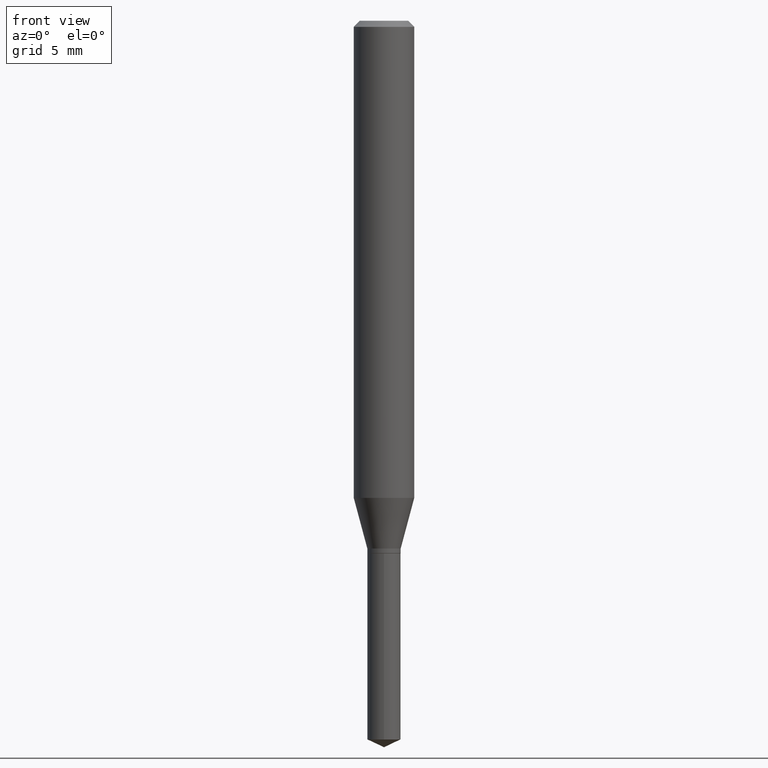
[diagram: clean part render]
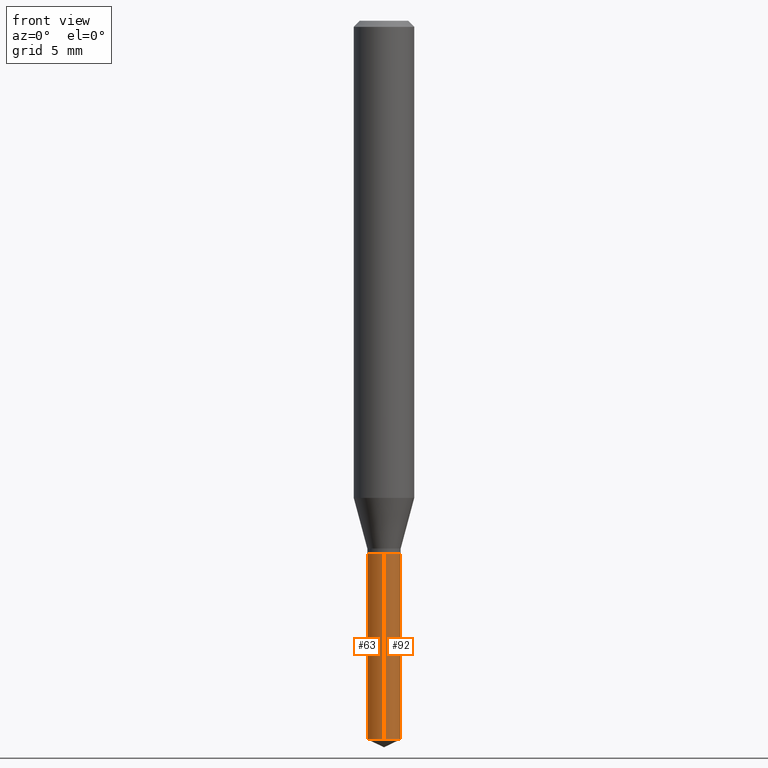
[diagram: same view with one multi-face feature highlighted, each face labeled with its STEP entity id]
A machine part, front view. The highlighted faces form ONE feature: a constant-radius fillet chain: 2 tangent blend faces with common blend radius 0.875 mm. The faces share edges in the B-rep.
Their STEP definitions:
[1] entity #92 (Cylinder):
#8 = CARTESIAN_POINT ( 'NONE',  ( 2.447819724693908613E-16, 0.03444999999999483198, -1.483935701176560595 ) ) ;
#20 = EDGE_LOOP ( 'NONE', ( #430, #183, #267, #487 ) ) ;
#23 = CARTESIAN_POINT ( 'NONE',  ( 2.690015686803650369E-29, -3.840629472727460101E-15, -1.100000000000000089 ) ) ;
#25 = EDGE_CURVE ( 'NONE', #289, #326, #198, .T. ) ;
#31 = VECTOR ( 'NONE', #48, 39.37007874015748143 ) ;
#42 = VECTOR ( 'NONE', #153, 39.37007874015748143 ) ;
#44 = DIRECTION ( 'NONE',  ( -2.445399690415121530E-29, 3.491580316559632610E-15, 1.000000000000000000 ) ) ;
#48 = DIRECTION ( 'NONE',  ( -2.445399690415121810E-29, 3.491580316559632610E-15, 1.000000000000000000 ) ) ;
#55 = CARTESIAN_POINT ( 'NONE',  ( -2.405630642462556803E-16, -0.03445000000000519175, -1.483935701176560595 ) ) ;
#61 = EDGE_CURVE ( 'NONE', #211, #326, #401, .T. ) ;
#71 = AXIS2_PLACEMENT_3D ( 'NONE', #283, #468, #383 ) ;
#83 = FACE_OUTER_BOUND ( 'NONE', #20, .T. ) ;
#92 = ADVANCED_FACE ( 'NONE', ( #83 ), #412, .T. ) ;
#107 = CIRCLE ( 'NONE', #71, 0.03445000000000000145 ) ;
#138 = DIRECTION ( 'NONE',  ( -6.982962677686265922E-15, -1.000000000000000000, 3.964946289788480896E-15 ) ) ;
#139 = CARTESIAN_POINT ( 'NONE',  ( -2.405630642462649987E-16, -0.03445000000000384560, -1.099999999999999867 ) ) ;
#153 = DIRECTION ( 'NONE',  ( -2.445399690415121810E-29, 3.491580316559632610E-15, 1.000000000000000000 ) ) ;
#154 = CARTESIAN_POINT ( 'NONE',  ( -2.405630642462649987E-16, -0.03445000000000384560, -1.099999999999999867 ) ) ;
#156 = VERTEX_POINT ( 'NONE', #55 ) ;
#183 = ORIENTED_EDGE ( 'NONE', *, *, #61, .T. ) ;
#193 = CARTESIAN_POINT ( 'NONE',  ( 2.690015686803650369E-29, -3.840629472727460101E-15, -1.100000000000000089 ) ) ;
#198 = CIRCLE ( 'NONE', #327, 0.03445000000000000145 ) ;
#211 = VERTEX_POINT ( 'NONE', #8 ) ;
#235 = EDGE_CURVE ( 'NONE', #156, #289, #394, .T. ) ;
#262 = DIRECTION ( 'NONE',  ( -2.445399690415121530E-29, 3.491580316559632610E-15, 1.000000000000000000 ) ) ;
#267 = ORIENTED_EDGE ( 'NONE', *, *, #25, .F. ) ;
#283 = CARTESIAN_POINT ( 'NONE',  ( 3.628891931600123606E-29, -5.181171809780059473E-15, -1.483935701176560595 ) ) ;
#289 = VERTEX_POINT ( 'NONE', #139 ) ;
#297 = EDGE_CURVE ( 'NONE', #156, #211, #107, .T. ) ;
#326 = VERTEX_POINT ( 'NONE', #427 ) ;
#327 = AXIS2_PLACEMENT_3D ( 'NONE', #23, #262, #138 ) ;
#348 = AXIS2_PLACEMENT_3D ( 'NONE', #193, #44, #368 ) ;
#368 = DIRECTION ( 'NONE',  ( -6.982962677686265922E-15, -1.000000000000000000, 3.964946289788480896E-15 ) ) ;
#383 = DIRECTION ( 'NONE',  ( -6.982962677686265922E-15, -1.000000000000000000, 0.000000000000000000 ) ) ;
#394 = LINE ( 'NONE', #154, #31 ) ;
#401 = LINE ( 'NONE', #483, #42 ) ;
#412 = CYLINDRICAL_SURFACE ( 'NONE', #348, 0.03445000000000000145 ) ;
#427 = CARTESIAN_POINT ( 'NONE',  ( 2.447819724693909106E-16, 0.03444999999999616425, -1.100000000000000089 ) ) ;
#430 = ORIENTED_EDGE ( 'NONE', *, *, #297, .T. ) ;
#468 = DIRECTION ( 'NONE',  ( -2.445399690415121530E-29, 3.491580316559632610E-15, 1.000000000000000000 ) ) ;
#483 = CARTESIAN_POINT ( 'NONE',  ( 2.447819724693813949E-16, 0.03444999999999616425, -1.100000000000000089 ) ) ;
#487 = ORIENTED_EDGE ( 'NONE', *, *, #235, .F. ) ;
[2] entity #63 (Cylinder):
#8 = CARTESIAN_POINT ( 'NONE',  ( 2.447819724693908613E-16, 0.03444999999999483198, -1.483935701176560595 ) ) ;
#14 = CARTESIAN_POINT ( 'NONE',  ( 2.690015686803650369E-29, -3.840629472727460101E-15, -1.100000000000000089 ) ) ;
#31 = VECTOR ( 'NONE', #48, 39.37007874015748143 ) ;
#42 = VECTOR ( 'NONE', #153, 39.37007874015748143 ) ;
#48 = DIRECTION ( 'NONE',  ( -2.445399690415121810E-29, 3.491580316559632610E-15, 1.000000000000000000 ) ) ;
#55 = CARTESIAN_POINT ( 'NONE',  ( -2.405630642462556803E-16, -0.03445000000000519175, -1.483935701176560595 ) ) ;
#61 = EDGE_CURVE ( 'NONE', #211, #326, #401, .T. ) ;
#63 = ADVANCED_FACE ( 'NONE', ( #145 ), #295, .T. ) ;
#67 = DIRECTION ( 'NONE',  ( -6.982962677686265922E-15, -1.000000000000000000, 3.964946289788480896E-15 ) ) ;
#74 = DIRECTION ( 'NONE',  ( -2.445399690415121530E-29, 3.491580316559632610E-15, 1.000000000000000000 ) ) ;
#77 = ORIENTED_EDGE ( 'NONE', *, *, #61, .F. ) ;
#99 = DIRECTION ( 'NONE',  ( -6.982962677686265922E-15, -1.000000000000000000, 3.964946289788480896E-15 ) ) ;
#124 = ORIENTED_EDGE ( 'NONE', *, *, #386, .T. ) ;
#139 = CARTESIAN_POINT ( 'NONE',  ( -2.405630642462649987E-16, -0.03445000000000384560, -1.099999999999999867 ) ) ;
#145 = FACE_OUTER_BOUND ( 'NONE', #294, .T. ) ;
#153 = DIRECTION ( 'NONE',  ( -2.445399690415121810E-29, 3.491580316559632610E-15, 1.000000000000000000 ) ) ;
#154 = CARTESIAN_POINT ( 'NONE',  ( -2.405630642462649987E-16, -0.03445000000000384560, -1.099999999999999867 ) ) ;
#156 = VERTEX_POINT ( 'NONE', #55 ) ;
#159 = DIRECTION ( 'NONE',  ( -6.982962677686265922E-15, -1.000000000000000000, 0.000000000000000000 ) ) ;
#163 = EDGE_CURVE ( 'NONE', #326, #289, #481, .T. ) ;
#175 = DIRECTION ( 'NONE',  ( -2.445399690415121530E-29, 3.491580316559632610E-15, 1.000000000000000000 ) ) ;
#205 = AXIS2_PLACEMENT_3D ( 'NONE', #438, #444, #67 ) ;
#211 = VERTEX_POINT ( 'NONE', #8 ) ;
#235 = EDGE_CURVE ( 'NONE', #156, #289, #394, .T. ) ;
#289 = VERTEX_POINT ( 'NONE', #139 ) ;
#294 = EDGE_LOOP ( 'NONE', ( #77, #124, #352, #362 ) ) ;
#295 = CYLINDRICAL_SURFACE ( 'NONE', #205, 0.03445000000000000145 ) ;
#326 = VERTEX_POINT ( 'NONE', #427 ) ;
#332 = CARTESIAN_POINT ( 'NONE',  ( 3.628891931600123606E-29, -5.181171809780059473E-15, -1.483935701176560595 ) ) ;
#336 = AXIS2_PLACEMENT_3D ( 'NONE', #332, #74, #159 ) ;
#352 = ORIENTED_EDGE ( 'NONE', *, *, #235, .T. ) ;
#362 = ORIENTED_EDGE ( 'NONE', *, *, #163, .F. ) ;
#386 = EDGE_CURVE ( 'NONE', #211, #156, #414, .T. ) ;
#394 = LINE ( 'NONE', #154, #31 ) ;
#401 = LINE ( 'NONE', #483, #42 ) ;
#414 = CIRCLE ( 'NONE', #336, 0.03445000000000000145 ) ;
#427 = CARTESIAN_POINT ( 'NONE',  ( 2.447819724693909106E-16, 0.03444999999999616425, -1.100000000000000089 ) ) ;
#438 = CARTESIAN_POINT ( 'NONE',  ( 2.690015686803650369E-29, -3.840629472727460101E-15, -1.100000000000000089 ) ) ;
#444 = DIRECTION ( 'NONE',  ( -2.445399690415121530E-29, 3.491580316559632610E-15, 1.000000000000000000 ) ) ;
#472 = AXIS2_PLACEMENT_3D ( 'NONE', #14, #175, #99 ) ;
#481 = CIRCLE ( 'NONE', #472, 0.03445000000000000145 ) ;
#483 = CARTESIAN_POINT ( 'NONE',  ( 2.447819724693813949E-16, 0.03444999999999616425, -1.100000000000000089 ) ) ;